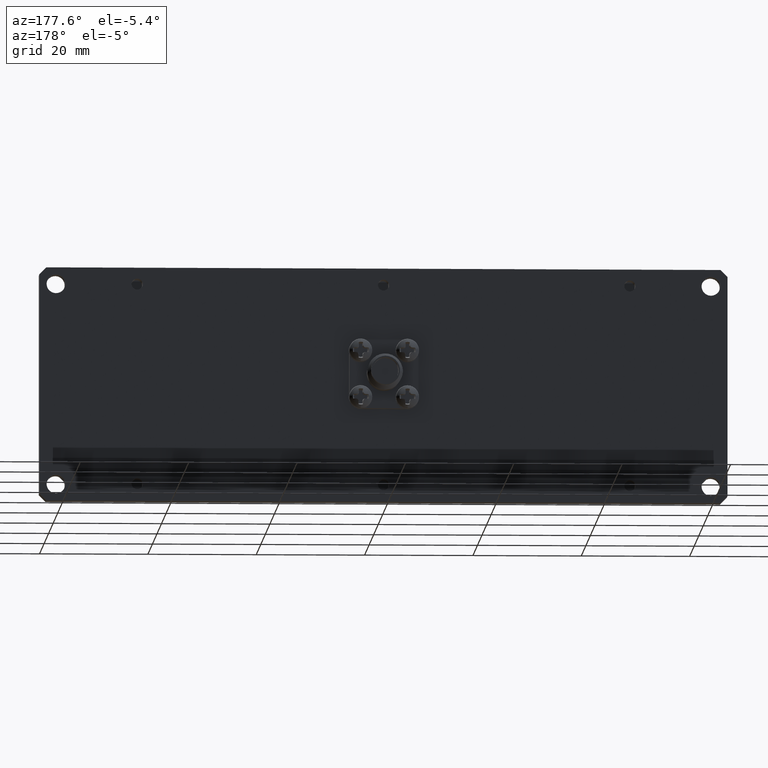
[diagram: clean part render]
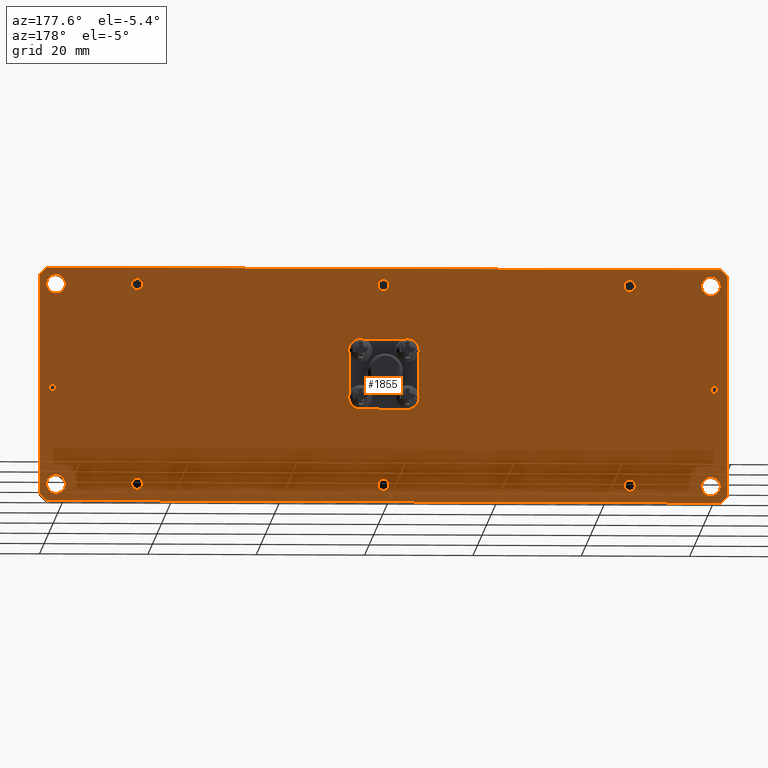
[diagram: same view with one face highlighted and labeled with its STEP entity id]
A machine part, auxiliary view. The second image highlights one B-rep face of the part: STEP entity #1855.
In plain terms, the highlighted planar face has unit normal (0, 1, 0).
Its self-contained STEP definition (entity closure, byte-faithful):
#170 = ORIENTED_EDGE ( 'NONE', *, *, #29486, .F. ) ;
#264 = EDGE_CURVE ( 'NONE', #14353, #33025, #21307, .T. ) ;
#444 = EDGE_LOOP ( 'NONE', ( #8546, #9588, #20936, #4145, #3672, #19358, #15142, #3455 ) ) ;
#504 = CARTESIAN_POINT ( 'NONE',  ( -1.649999999999999900, 0.1250000000000000000, 1.649999999999999900 ) ) ;
#555 = CARTESIAN_POINT ( 'NONE',  ( -2.380000000000000300, 0.1250000000000000000, 0.6619999999999994800 ) ) ;
#564 = DIRECTION ( 'NONE',  ( 0.0000000000000000000, -0.0000000000000000000, 1.000000000000000000 ) ) ;
#573 = CARTESIAN_POINT ( 'NONE',  ( 2.380000000000000800, 0.1250000000000000000, 0.7299999999999995400 ) ) ;
#587 = EDGE_CURVE ( 'NONE', #1385, #23459, #22820, .T. ) ;
#641 = VERTEX_POINT ( 'NONE', #23911 ) ;
#778 = AXIS2_PLACEMENT_3D ( 'NONE', #17307, #4745, #24891 ) ;
#812 = EDGE_CURVE ( 'NONE', #25346, #32474, #12779, .T. ) ;
#861 = CARTESIAN_POINT ( 'NONE',  ( 1.789999999999999800, 0.1250000000000000600, 0.7703543307086611100 ) ) ;
#916 = VERTEX_POINT ( 'NONE', #22867 ) ;
#959 = DIRECTION ( 'NONE',  ( 0.0000000000000000000, 0.0000000000000000000, 1.000000000000000000 ) ) ;
#1064 = DIRECTION ( 'NONE',  ( -0.0000000000000000000, 1.000000000000000000, -0.0000000000000000000 ) ) ;
#1065 = DIRECTION ( 'NONE',  ( 0.0000000000000000000, 1.000000000000000000, 0.0000000000000000000 ) ) ;
#1241 = DIRECTION ( 'NONE',  ( 0.7071067811865455700, -0.0000000000000000000, -0.7071067811865494600 ) ) ;
#1284 = DIRECTION ( 'NONE',  ( 0.0000000000000000000, 0.0000000000000000000, 1.000000000000000000 ) ) ;
#1319 = CARTESIAN_POINT ( 'NONE',  ( 2.450000000000001100, 0.1250000000000000000, 0.8499999999999995300 ) ) ;
#1385 = VERTEX_POINT ( 'NONE', #32944 ) ;
#1540 = DIRECTION ( 'NONE',  ( 0.0000000000000000000, 0.0000000000000000000, 1.000000000000000000 ) ) ;
#1613 = DIRECTION ( 'NONE',  ( -0.7071067811865474600, -0.0000000000000000000, 0.7071067811865474600 ) ) ;
#1618 = DIRECTION ( 'NONE',  ( 0.0000000000000000000, 1.000000000000000000, 0.0000000000000000000 ) ) ;
#1763 = ORIENTED_EDGE ( 'NONE', *, *, #23450, .F. ) ;
#1847 = DIRECTION ( 'NONE',  ( 0.0000000000000000000, 0.0000000000000000000, 1.000000000000000000 ) ) ;
#1855 = ADVANCED_FACE ( 'NONE', ( #25013, #9827, #21420, #19019, #7846, #2603, #17040, #13815, #24644, #15416, #18221, #30684, #8637 ), #14994, .T. ) ;
#1941 = CIRCLE ( 'NONE', #3715, 0.04035433070866093600 ) ;
#2153 = CIRCLE ( 'NONE', #4446, 0.02499999999999981400 ) ;
#2354 = ORIENTED_EDGE ( 'NONE', *, *, #22915, .F. ) ;
#2481 = EDGE_CURVE ( 'NONE', #916, #29447, #4074, .T. ) ;
#2555 = AXIS2_PLACEMENT_3D ( 'NONE', #11562, #24423, #16803 ) ;
#2603 = FACE_BOUND ( 'NONE', #22488, .T. ) ;
#2660 = CARTESIAN_POINT ( 'NONE',  ( -2.450000000000000200, 0.1250000000000000000, 0.8500000000000000900 ) ) ;
#2874 = DIRECTION ( 'NONE',  ( -0.0000000000000000000, -0.0000000000000000000, 1.000000000000000000 ) ) ;
#3363 = CARTESIAN_POINT ( 'NONE',  ( -2.405000000000000200, 0.1250000000000000000, -6.018602611041579900E-016 ) ) ;
#3455 = ORIENTED_EDGE ( 'NONE', *, *, #5411, .T. ) ;
#3519 = CIRCLE ( 'NONE', #12089, 0.06800000000000006000 ) ;
#3672 = ORIENTED_EDGE ( 'NONE', *, *, #812, .T. ) ;
#3715 = AXIS2_PLACEMENT_3D ( 'NONE', #5989, #22386, #9108 ) ;
#3731 = EDGE_LOOP ( 'NONE', ( #22822, #15215 ) ) ;
#3863 = LINE ( 'NONE', #13983, #30324 ) ;
#3930 = AXIS2_PLACEMENT_3D ( 'NONE', #21718, #11465, #26549 ) ;
#3964 = DIRECTION ( 'NONE',  ( 0.0000000000000000000, 0.0000000000000000000, 1.000000000000000000 ) ) ;
#4018 = EDGE_CURVE ( 'NONE', #32520, #13298, #17468, .T. ) ;
#4074 = CIRCLE ( 'NONE', #2555, 0.02499999999999981400 ) ;
#4145 = ORIENTED_EDGE ( 'NONE', *, *, #14202, .T. ) ;
#4251 = DIRECTION ( 'NONE',  ( 0.0000000000000000000, 1.000000000000000000, 0.0000000000000000000 ) ) ;
#4446 = AXIS2_PLACEMENT_3D ( 'NONE', #6110, #1065, #21525 ) ;
#4472 = EDGE_CURVE ( 'NONE', #22139, #14151, #32641, .T. ) ;
#4605 = VECTOR ( 'NONE', #7930, 39.37007874015748100 ) ;
#4725 = ORIENTED_EDGE ( 'NONE', *, *, #25792, .F. ) ;
#4735 = VERTEX_POINT ( 'NONE', #13486 ) ;
#4745 = DIRECTION ( 'NONE',  ( -0.0000000000000000000, 1.000000000000000000, -0.0000000000000000000 ) ) ;
#4906 = AXIS2_PLACEMENT_3D ( 'NONE', #30231, #32753, #17446 ) ;
#4967 = CIRCLE ( 'NONE', #12500, 0.02499999999999981400 ) ;
#5139 = CARTESIAN_POINT ( 'NONE',  ( 2.500000000000000000, 0.1250000000000000000, 0.8000000000000003800 ) ) ;
#5169 = VECTOR ( 'NONE', #11844, 39.37007874015748100 ) ;
#5332 = ORIENTED_EDGE ( 'NONE', *, *, #4018, .F. ) ;
#5411 = EDGE_CURVE ( 'NONE', #14151, #16728, #18124, .T. ) ;
#5433 = AXIS2_PLACEMENT_3D ( 'NONE', #26445, #1064, #959 ) ;
#5514 = EDGE_CURVE ( 'NONE', #18099, #11723, #22457, .T. ) ;
#5598 = CARTESIAN_POINT ( 'NONE',  ( 0.0000000000000000000, 0.1250000000000000600, 0.7300000000000003200 ) ) ;
#5687 = CARTESIAN_POINT ( 'NONE',  ( -2.500000000000000000, 0.1250000000000000000, 0.8500000000000000900 ) ) ;
#5989 = CARTESIAN_POINT ( 'NONE',  ( 0.0000000000000000000, 0.1250000000000000600, 0.7300000000000003200 ) ) ;
#6106 = VERTEX_POINT ( 'NONE', #22708 ) ;
#6110 = CARTESIAN_POINT ( 'NONE',  ( -2.405000000000000200, 0.1250000000000000000, -0.02500000000000041800 ) ) ;
#6322 = EDGE_CURVE ( 'NONE', #32801, #8958, #12096, .T. ) ;
#6768 = CIRCLE ( 'NONE', #16012, 0.04035433070866079700 ) ;
#6859 = CARTESIAN_POINT ( 'NONE',  ( -1.790000000000000300, 0.1250000000000000600, 0.6896456692913393000 ) ) ;
#7077 = CARTESIAN_POINT ( 'NONE',  ( 2.380000000000000800, 0.1250000000000000000, -0.7980000000000004900 ) ) ;
#7143 = EDGE_LOOP ( 'NONE', ( #11446, #8162 ) ) ;
#7259 = EDGE_CURVE ( 'NONE', #11723, #18099, #27214, .T. ) ;
#7325 = ORIENTED_EDGE ( 'NONE', *, *, #7259, .F. ) ;
#7335 = CARTESIAN_POINT ( 'NONE',  ( -2.380000000000000300, 0.1250000000000000000, -0.7300000000000004300 ) ) ;
#7354 = ORIENTED_EDGE ( 'NONE', *, *, #264, .F. ) ;
#7538 = DIRECTION ( 'NONE',  ( 0.0000000000000000000, 1.000000000000000000, 0.0000000000000000000 ) ) ;
#7583 = AXIS2_PLACEMENT_3D ( 'NONE', #5598, #13199, #8077 ) ;
#7617 = VERTEX_POINT ( 'NONE', #26467 ) ;
#7619 = AXIS2_PLACEMENT_3D ( 'NONE', #28498, #18292, #20836 ) ;
#7764 = VERTEX_POINT ( 'NONE', #861 ) ;
#7846 = FACE_BOUND ( 'NONE', #25328, .T. ) ;
#7904 = DIRECTION ( 'NONE',  ( 0.0000000000000000000, 0.0000000000000000000, 1.000000000000000000 ) ) ;
#7916 = CARTESIAN_POINT ( 'NONE',  ( 0.0000000000000000000, 0.1250000000000000600, 0.7703543307086612200 ) ) ;
#7930 = DIRECTION ( 'NONE',  ( 0.0000000000000000000, 0.0000000000000000000, -1.000000000000000000 ) ) ;
#8022 = DIRECTION ( 'NONE',  ( -1.000000000000000000, 0.0000000000000000000, 1.092739197465705300E-016 ) ) ;
#8077 = DIRECTION ( 'NONE',  ( 0.0000000000000000000, 0.0000000000000000000, 1.000000000000000000 ) ) ;
#8162 = ORIENTED_EDGE ( 'NONE', *, *, #19908, .F. ) ;
#8242 = CARTESIAN_POINT ( 'NONE',  ( -2.380000000000000300, 0.1250000000000000000, 0.7979999999999997100 ) ) ;
#8546 = ORIENTED_EDGE ( 'NONE', *, *, #19671, .T. ) ;
#8566 = ORIENTED_EDGE ( 'NONE', *, *, #32988, .F. ) ;
#8587 = CIRCLE ( 'NONE', #30400, 0.06800000000000006000 ) ;
#8637 = FACE_BOUND ( 'NONE', #17444, .T. ) ;
#8866 = CIRCLE ( 'NONE', #31024, 0.06800000000000006000 ) ;
#8958 = VERTEX_POINT ( 'NONE', #7077 ) ;
#9108 = DIRECTION ( 'NONE',  ( 0.0000000000000000000, 0.0000000000000000000, 1.000000000000000000 ) ) ;
#9131 = CARTESIAN_POINT ( 'NONE',  ( -1.790000000000000300, 0.1250000000000000600, 0.7300000000000000900 ) ) ;
#9184 = EDGE_CURVE ( 'NONE', #25024, #29705, #10803, .T. ) ;
#9336 = VERTEX_POINT ( 'NONE', #10342 ) ;
#9588 = ORIENTED_EDGE ( 'NONE', *, *, #19958, .T. ) ;
#9605 = CARTESIAN_POINT ( 'NONE',  ( 2.380000000000000800, 0.1250000000000000000, 0.7979999999999997100 ) ) ;
#9827 = FACE_BOUND ( 'NONE', #30229, .T. ) ;
#10035 = EDGE_LOOP ( 'NONE', ( #20780, #16948 ) ) ;
#10044 = EDGE_CURVE ( 'NONE', #7764, #641, #11891, .T. ) ;
#10151 = VERTEX_POINT ( 'NONE', #3363 ) ;
#10306 = AXIS2_PLACEMENT_3D ( 'NONE', #15699, #15820, #13464 ) ;
#10320 = DIRECTION ( 'NONE',  ( 0.0000000000000000000, 0.0000000000000000000, 1.000000000000000000 ) ) ;
#10342 = CARTESIAN_POINT ( 'NONE',  ( 0.0000000000000000000, 0.1250000000000000600, -0.6856456692913390800 ) ) ;
#10546 = AXIS2_PLACEMENT_3D ( 'NONE', #573, #16220, #18458 ) ;
#10713 = CARTESIAN_POINT ( 'NONE',  ( 2.500000000000000000, 0.1250000000000000000, -0.8000000000000006000 ) ) ;
#10714 = CARTESIAN_POINT ( 'NONE',  ( -2.500000000000000000, 0.1250000000000000000, 0.8000000000000003800 ) ) ;
#10803 = CIRCLE ( 'NONE', #778, 0.04035433070866079700 ) ;
#11211 = AXIS2_PLACEMENT_3D ( 'NONE', #22066, #1618, #1847 ) ;
#11446 = ORIENTED_EDGE ( 'NONE', *, *, #22501, .F. ) ;
#11465 = DIRECTION ( 'NONE',  ( -0.0000000000000000000, 1.000000000000000000, -0.0000000000000000000 ) ) ;
#11562 = CARTESIAN_POINT ( 'NONE',  ( 2.405000000000000200, 0.1250000000000000000, -0.02500000000000041800 ) ) ;
#11697 = DIRECTION ( 'NONE',  ( -0.7071067811865513500, 0.0000000000000000000, -0.7071067811865435800 ) ) ;
#11723 = VERTEX_POINT ( 'NONE', #21324 ) ;
#11744 = CARTESIAN_POINT ( 'NONE',  ( -2.450000000000000200, 0.1250000000000000000, -0.8499999999999998700 ) ) ;
#11844 = DIRECTION ( 'NONE',  ( 1.000000000000000000, -0.0000000000000000000, -1.092739197465705300E-016 ) ) ;
#11891 = CIRCLE ( 'NONE', #22671, 0.04035433070866079700 ) ;
#12089 = AXIS2_PLACEMENT_3D ( 'NONE', #29801, #4251, #19110 ) ;
#12096 = CIRCLE ( 'NONE', #11211, 0.06800000000000006000 ) ;
#12153 = EDGE_CURVE ( 'NONE', #21048, #6106, #16273, .T. ) ;
#12293 = EDGE_CURVE ( 'NONE', #32474, #22139, #3863, .T. ) ;
#12500 = AXIS2_PLACEMENT_3D ( 'NONE', #14528, #24814, #17328 ) ;
#12712 = CARTESIAN_POINT ( 'NONE',  ( 2.500000000000000000, 0.1250000000000000000, -0.8500000000000003100 ) ) ;
#12779 = LINE ( 'NONE', #32095, #5169 ) ;
#12837 = CARTESIAN_POINT ( 'NONE',  ( 2.500000000000000000, 0.1250000000000000000, 0.8499999999999995300 ) ) ;
#12925 = CIRCLE ( 'NONE', #5433, 0.04035433070866093600 ) ;
#13199 = DIRECTION ( 'NONE',  ( -0.0000000000000000000, 1.000000000000000000, -0.0000000000000000000 ) ) ;
#13242 = AXIS2_PLACEMENT_3D ( 'NONE', #21615, #24335, #1284 ) ;
#13298 = VERTEX_POINT ( 'NONE', #7916 ) ;
#13464 = DIRECTION ( 'NONE',  ( 0.0000000000000000000, 0.0000000000000000000, 1.000000000000000000 ) ) ;
#13486 = CARTESIAN_POINT ( 'NONE',  ( 4.941980193409546500E-018, 0.1250000000000000600, -0.7663543307086608800 ) ) ;
#13791 = DIRECTION ( 'NONE',  ( 0.0000000000000000000, 0.0000000000000000000, 1.000000000000000000 ) ) ;
#13815 = FACE_BOUND ( 'NONE', #3731, .T. ) ;
#13860 = EDGE_CURVE ( 'NONE', #641, #7764, #23270, .T. ) ;
#13983 = CARTESIAN_POINT ( 'NONE',  ( 1.650000000000007200, 0.1250000000000000000, 1.649999999999998100 ) ) ;
#14151 = VERTEX_POINT ( 'NONE', #10713 ) ;
#14172 = DIRECTION ( 'NONE',  ( -0.0000000000000000000, 1.000000000000000000, -0.0000000000000000000 ) ) ;
#14202 = EDGE_CURVE ( 'NONE', #23459, #25346, #22017, .T. ) ;
#14353 = VERTEX_POINT ( 'NONE', #21834 ) ;
#14528 = CARTESIAN_POINT ( 'NONE',  ( -2.405000000000000200, 0.1250000000000000000, -0.02500000000000041800 ) ) ;
#14552 = CIRCLE ( 'NONE', #27111, 0.06800000000000006000 ) ;
#14695 = AXIS2_PLACEMENT_3D ( 'NONE', #17957, #18288, #7904 ) ;
#14816 = CIRCLE ( 'NONE', #21924, 0.06800000000000006000 ) ;
#14919 = EDGE_CURVE ( 'NONE', #29705, #25024, #6768, .T. ) ;
#14994 = PLANE ( 'NONE',  #17561 ) ;
#15142 = ORIENTED_EDGE ( 'NONE', *, *, #4472, .T. ) ;
#15215 = ORIENTED_EDGE ( 'NONE', *, *, #12153, .F. ) ;
#15416 = FACE_OUTER_BOUND ( 'NONE', #444, .T. ) ;
#15699 = CARTESIAN_POINT ( 'NONE',  ( 2.405000000000000200, 0.1250000000000000000, -0.02500000000000041800 ) ) ;
#15820 = DIRECTION ( 'NONE',  ( 0.0000000000000000000, 1.000000000000000000, 0.0000000000000000000 ) ) ;
#15834 = DIRECTION ( 'NONE',  ( 0.0000000000000000000, 0.0000000000000000000, 1.000000000000000000 ) ) ;
#16012 = AXIS2_PLACEMENT_3D ( 'NONE', #9131, #31768, #19191 ) ;
#16018 = VECTOR ( 'NONE', #18393, 39.37007874015748900 ) ;
#16125 = ORIENTED_EDGE ( 'NONE', *, *, #17108, .F. ) ;
#16184 = VERTEX_POINT ( 'NONE', #23199 ) ;
#16220 = DIRECTION ( 'NONE',  ( 0.0000000000000000000, 1.000000000000000000, 0.0000000000000000000 ) ) ;
#16273 = CIRCLE ( 'NONE', #10546, 0.06800000000000006000 ) ;
#16418 = CARTESIAN_POINT ( 'NONE',  ( 2.449999999999999700, 0.1250000000000000000, -0.8500000000000003100 ) ) ;
#16728 = VERTEX_POINT ( 'NONE', #16418 ) ;
#16755 = AXIS2_PLACEMENT_3D ( 'NONE', #21292, #31409, #28954 ) ;
#16791 = CIRCLE ( 'NONE', #10306, 0.02499999999999981400 ) ;
#16803 = DIRECTION ( 'NONE',  ( 0.0000000000000000000, 0.0000000000000000000, 1.000000000000000000 ) ) ;
#16948 = ORIENTED_EDGE ( 'NONE', *, *, #13860, .F. ) ;
#17040 = FACE_BOUND ( 'NONE', #20011, .T. ) ;
#17068 = CARTESIAN_POINT ( 'NONE',  ( -1.649999999999999900, 0.1250000000000000000, -1.649999999999999900 ) ) ;
#17108 = EDGE_CURVE ( 'NONE', #9336, #4735, #18026, .T. ) ;
#17217 = ORIENTED_EDGE ( 'NONE', *, *, #5514, .F. ) ;
#17307 = CARTESIAN_POINT ( 'NONE',  ( -1.790000000000000300, 0.1250000000000000600, 0.7300000000000000900 ) ) ;
#17328 = DIRECTION ( 'NONE',  ( 0.0000000000000000000, 0.0000000000000000000, 1.000000000000000000 ) ) ;
#17444 = EDGE_LOOP ( 'NONE', ( #8566, #17874 ) ) ;
#17446 = DIRECTION ( 'NONE',  ( 0.0000000000000000000, 0.0000000000000000000, 1.000000000000000000 ) ) ;
#17468 = CIRCLE ( 'NONE', #7583, 0.04035433070866093600 ) ;
#17561 = AXIS2_PLACEMENT_3D ( 'NONE', #18447, #18344, #564 ) ;
#17725 = VERTEX_POINT ( 'NONE', #8242 ) ;
#17874 = ORIENTED_EDGE ( 'NONE', *, *, #6322, .F. ) ;
#17924 = EDGE_CURVE ( 'NONE', #13298, #32520, #1941, .T. ) ;
#17957 = CARTESIAN_POINT ( 'NONE',  ( -1.790000000000000300, 0.1250000000000000600, -0.7259999999999999800 ) ) ;
#18026 = CIRCLE ( 'NONE', #16755, 0.04035433070866093600 ) ;
#18099 = VERTEX_POINT ( 'NONE', #22958 ) ;
#18124 = LINE ( 'NONE', #19270, #23697 ) ;
#18221 = FACE_BOUND ( 'NONE', #28218, .T. ) ;
#18288 = DIRECTION ( 'NONE',  ( -0.0000000000000000000, 1.000000000000000000, -0.0000000000000000000 ) ) ;
#18292 = DIRECTION ( 'NONE',  ( -0.0000000000000000000, 1.000000000000000000, -0.0000000000000000000 ) ) ;
#18344 = DIRECTION ( 'NONE',  ( 0.0000000000000000000, 1.000000000000000000, 0.0000000000000000000 ) ) ;
#18393 = DIRECTION ( 'NONE',  ( 0.7071067811865474600, -0.0000000000000000000, 0.7071067811865474600 ) ) ;
#18447 = CARTESIAN_POINT ( 'NONE',  ( 0.0000000000000000000, 0.1250000000000000000, 0.0000000000000000000 ) ) ;
#18458 = DIRECTION ( 'NONE',  ( 0.0000000000000000000, 0.0000000000000000000, 1.000000000000000000 ) ) ;
#18821 = DIRECTION ( 'NONE',  ( 0.0000000000000000000, 1.000000000000000000, 0.0000000000000000000 ) ) ;
#19019 = FACE_BOUND ( 'NONE', #10035, .T. ) ;
#19110 = DIRECTION ( 'NONE',  ( 0.0000000000000000000, 0.0000000000000000000, 1.000000000000000000 ) ) ;
#19191 = DIRECTION ( 'NONE',  ( 0.0000000000000000000, 0.0000000000000000000, 1.000000000000000000 ) ) ;
#19270 = CARTESIAN_POINT ( 'NONE',  ( 1.649999999999986800, 0.1250000000000000000, -1.650000000000005000 ) ) ;
#19279 = CARTESIAN_POINT ( 'NONE',  ( 2.380000000000000800, 0.1250000000000000000, 0.7299999999999995400 ) ) ;
#19358 = ORIENTED_EDGE ( 'NONE', *, *, #12293, .T. ) ;
#19572 = EDGE_LOOP ( 'NONE', ( #25019, #28254 ) ) ;
#19671 = EDGE_CURVE ( 'NONE', #16728, #25603, #23371, .T. ) ;
#19697 = ORIENTED_EDGE ( 'NONE', *, *, #17924, .F. ) ;
#19908 = EDGE_CURVE ( 'NONE', #10151, #16184, #2153, .T. ) ;
#19958 = EDGE_CURVE ( 'NONE', #25603, #1385, #23808, .T. ) ;
#20011 = EDGE_LOOP ( 'NONE', ( #30549, #25432 ) ) ;
#20073 = CIRCLE ( 'NONE', #7619, 0.04035433070866079700 ) ;
#20780 = ORIENTED_EDGE ( 'NONE', *, *, #10044, .F. ) ;
#20836 = DIRECTION ( 'NONE',  ( 0.0000000000000000000, 0.0000000000000000000, 1.000000000000000000 ) ) ;
#20936 = ORIENTED_EDGE ( 'NONE', *, *, #587, .T. ) ;
#20969 = DIRECTION ( 'NONE',  ( 0.0000000000000000000, 1.000000000000000000, 0.0000000000000000000 ) ) ;
#21048 = VERTEX_POINT ( 'NONE', #9605 ) ;
#21075 = CARTESIAN_POINT ( 'NONE',  ( -2.380000000000000300, 0.1250000000000000000, -0.7980000000000004900 ) ) ;
#21077 = CARTESIAN_POINT ( 'NONE',  ( -1.790000000000000300, 0.1250000000000000600, 0.7703543307086608800 ) ) ;
#21292 = CARTESIAN_POINT ( 'NONE',  ( 0.0000000000000000000, 0.1250000000000000600, -0.7259999999999999800 ) ) ;
#21307 = CIRCLE ( 'NONE', #14695, 0.04035433070866079700 ) ;
#21324 = CARTESIAN_POINT ( 'NONE',  ( 1.789999999999999800, 0.1250000000000000600, -0.6856456692913391900 ) ) ;
#21420 = FACE_BOUND ( 'NONE', #21909, .T. ) ;
#21525 = DIRECTION ( 'NONE',  ( 0.0000000000000000000, 0.0000000000000000000, 1.000000000000000000 ) ) ;
#21579 = DIRECTION ( 'NONE',  ( -0.0000000000000000000, 1.000000000000000000, -0.0000000000000000000 ) ) ;
#21615 = CARTESIAN_POINT ( 'NONE',  ( -2.380000000000000300, 0.1250000000000000000, 0.7299999999999995400 ) ) ;
#21718 = CARTESIAN_POINT ( 'NONE',  ( 1.789999999999999800, 0.1250000000000000600, -0.7259999999999999800 ) ) ;
#21834 = CARTESIAN_POINT ( 'NONE',  ( -1.790000000000000300, 0.1250000000000000600, -0.6856456692913391900 ) ) ;
#21909 = EDGE_LOOP ( 'NONE', ( #7325, #17217 ) ) ;
#21924 = AXIS2_PLACEMENT_3D ( 'NONE', #23216, #20969, #15834 ) ;
#22017 = LINE ( 'NONE', #504, #16018 ) ;
#22066 = CARTESIAN_POINT ( 'NONE',  ( 2.380000000000000800, 0.1250000000000000000, -0.7300000000000004300 ) ) ;
#22139 = VERTEX_POINT ( 'NONE', #5139 ) ;
#22268 = VERTEX_POINT ( 'NONE', #555 ) ;
#22386 = DIRECTION ( 'NONE',  ( -0.0000000000000000000, 1.000000000000000000, -0.0000000000000000000 ) ) ;
#22457 = CIRCLE ( 'NONE', #4906, 0.04035433070866079700 ) ;
#22488 = EDGE_LOOP ( 'NONE', ( #29358, #33196 ) ) ;
#22501 = EDGE_CURVE ( 'NONE', #16184, #10151, #4967, .T. ) ;
#22518 = CARTESIAN_POINT ( 'NONE',  ( 4.941980193409546500E-018, 0.1250000000000000600, 0.6896456692913393000 ) ) ;
#22671 = AXIS2_PLACEMENT_3D ( 'NONE', #31923, #21579, #29237 ) ;
#22684 = CIRCLE ( 'NONE', #13242, 0.06800000000000006000 ) ;
#22708 = CARTESIAN_POINT ( 'NONE',  ( 2.380000000000000800, 0.1250000000000000000, 0.6619999999999994800 ) ) ;
#22820 = LINE ( 'NONE', #5687, #24855 ) ;
#22822 = ORIENTED_EDGE ( 'NONE', *, *, #23107, .F. ) ;
#22867 = CARTESIAN_POINT ( 'NONE',  ( 2.405000000000000200, 0.1250000000000000000, -6.018602611041579900E-016 ) ) ;
#22915 = EDGE_CURVE ( 'NONE', #4735, #9336, #12925, .T. ) ;
#22929 = VERTEX_POINT ( 'NONE', #21075 ) ;
#22958 = CARTESIAN_POINT ( 'NONE',  ( 1.789999999999999800, 0.1250000000000000600, -0.7663543307086607700 ) ) ;
#23107 = EDGE_CURVE ( 'NONE', #6106, #21048, #14552, .T. ) ;
#23199 = CARTESIAN_POINT ( 'NONE',  ( -2.405000000000000200, 0.1250000000000000000, -0.05000000000000023200 ) ) ;
#23216 = CARTESIAN_POINT ( 'NONE',  ( -2.380000000000000300, 0.1250000000000000000, -0.7300000000000004300 ) ) ;
#23270 = CIRCLE ( 'NONE', #26258, 0.04035433070866079700 ) ;
#23371 = LINE ( 'NONE', #12712, #30230 ) ;
#23450 = EDGE_CURVE ( 'NONE', #33025, #14353, #20073, .T. ) ;
#23459 = VERTEX_POINT ( 'NONE', #10714 ) ;
#23697 = VECTOR ( 'NONE', #11697, 39.37007874015748900 ) ;
#23808 = LINE ( 'NONE', #17068, #24981 ) ;
#23911 = CARTESIAN_POINT ( 'NONE',  ( 1.789999999999999800, 0.1250000000000000600, 0.6896456692913395200 ) ) ;
#24187 = EDGE_CURVE ( 'NONE', #7617, #22929, #14816, .T. ) ;
#24268 = CARTESIAN_POINT ( 'NONE',  ( 1.789999999999999800, 0.1250000000000000600, 0.7300000000000003200 ) ) ;
#24335 = DIRECTION ( 'NONE',  ( 0.0000000000000000000, 1.000000000000000000, 0.0000000000000000000 ) ) ;
#24423 = DIRECTION ( 'NONE',  ( 0.0000000000000000000, 1.000000000000000000, 0.0000000000000000000 ) ) ;
#24644 = FACE_BOUND ( 'NONE', #19572, .T. ) ;
#24814 = DIRECTION ( 'NONE',  ( 0.0000000000000000000, 1.000000000000000000, 0.0000000000000000000 ) ) ;
#24855 = VECTOR ( 'NONE', #2874, 39.37007874015748100 ) ;
#24891 = DIRECTION ( 'NONE',  ( 0.0000000000000000000, 0.0000000000000000000, 1.000000000000000000 ) ) ;
#24981 = VECTOR ( 'NONE', #1613, 39.37007874015748900 ) ;
#25013 = FACE_BOUND ( 'NONE', #31794, .T. ) ;
#25019 = ORIENTED_EDGE ( 'NONE', *, *, #28127, .F. ) ;
#25024 = VERTEX_POINT ( 'NONE', #6859 ) ;
#25328 = EDGE_LOOP ( 'NONE', ( #19697, #5332 ) ) ;
#25346 = VERTEX_POINT ( 'NONE', #2660 ) ;
#25432 = ORIENTED_EDGE ( 'NONE', *, *, #2481, .F. ) ;
#25603 = VERTEX_POINT ( 'NONE', #11744 ) ;
#25792 = EDGE_CURVE ( 'NONE', #22268, #17725, #3519, .T. ) ;
#26258 = AXIS2_PLACEMENT_3D ( 'NONE', #24268, #14172, #1540 ) ;
#26445 = CARTESIAN_POINT ( 'NONE',  ( 0.0000000000000000000, 0.1250000000000000600, -0.7259999999999999800 ) ) ;
#26467 = CARTESIAN_POINT ( 'NONE',  ( -2.380000000000000300, 0.1250000000000000000, -0.6620000000000003700 ) ) ;
#26549 = DIRECTION ( 'NONE',  ( 0.0000000000000000000, 0.0000000000000000000, 1.000000000000000000 ) ) ;
#27111 = AXIS2_PLACEMENT_3D ( 'NONE', #19279, #29395, #3964 ) ;
#27214 = CIRCLE ( 'NONE', #3930, 0.04035433070866079700 ) ;
#28127 = EDGE_CURVE ( 'NONE', #22929, #7617, #8866, .T. ) ;
#28218 = EDGE_LOOP ( 'NONE', ( #4725, #170 ) ) ;
#28254 = ORIENTED_EDGE ( 'NONE', *, *, #24187, .F. ) ;
#28498 = CARTESIAN_POINT ( 'NONE',  ( -1.790000000000000300, 0.1250000000000000600, -0.7259999999999999800 ) ) ;
#28954 = DIRECTION ( 'NONE',  ( 0.0000000000000000000, 0.0000000000000000000, 1.000000000000000000 ) ) ;
#29158 = CARTESIAN_POINT ( 'NONE',  ( -1.790000000000000300, 0.1250000000000000600, -0.7663543307086607700 ) ) ;
#29237 = DIRECTION ( 'NONE',  ( 0.0000000000000000000, 0.0000000000000000000, 1.000000000000000000 ) ) ;
#29263 = CARTESIAN_POINT ( 'NONE',  ( 2.380000000000000800, 0.1250000000000000000, -0.7300000000000004300 ) ) ;
#29358 = ORIENTED_EDGE ( 'NONE', *, *, #14919, .F. ) ;
#29395 = DIRECTION ( 'NONE',  ( 0.0000000000000000000, 1.000000000000000000, 0.0000000000000000000 ) ) ;
#29447 = VERTEX_POINT ( 'NONE', #31737 ) ;
#29486 = EDGE_CURVE ( 'NONE', #17725, #22268, #22684, .T. ) ;
#29705 = VERTEX_POINT ( 'NONE', #21077 ) ;
#29801 = CARTESIAN_POINT ( 'NONE',  ( -2.380000000000000300, 0.1250000000000000000, 0.7299999999999995400 ) ) ;
#30229 = EDGE_LOOP ( 'NONE', ( #16125, #2354 ) ) ;
#30230 = VECTOR ( 'NONE', #8022, 39.37007874015748100 ) ;
#30231 = CARTESIAN_POINT ( 'NONE',  ( 1.789999999999999800, 0.1250000000000000600, -0.7259999999999999800 ) ) ;
#30324 = VECTOR ( 'NONE', #1241, 39.37007874015748900 ) ;
#30400 = AXIS2_PLACEMENT_3D ( 'NONE', #29263, #18821, #13791 ) ;
#30549 = ORIENTED_EDGE ( 'NONE', *, *, #31236, .F. ) ;
#30684 = FACE_BOUND ( 'NONE', #7143, .T. ) ;
#31024 = AXIS2_PLACEMENT_3D ( 'NONE', #7335, #7538, #10320 ) ;
#31171 = CARTESIAN_POINT ( 'NONE',  ( 2.380000000000000800, 0.1250000000000000000, -0.6620000000000003700 ) ) ;
#31236 = EDGE_CURVE ( 'NONE', #29447, #916, #16791, .T. ) ;
#31409 = DIRECTION ( 'NONE',  ( -0.0000000000000000000, 1.000000000000000000, -0.0000000000000000000 ) ) ;
#31737 = CARTESIAN_POINT ( 'NONE',  ( 2.405000000000000200, 0.1250000000000000000, -0.05000000000000023200 ) ) ;
#31768 = DIRECTION ( 'NONE',  ( -0.0000000000000000000, 1.000000000000000000, -0.0000000000000000000 ) ) ;
#31794 = EDGE_LOOP ( 'NONE', ( #7354, #1763 ) ) ;
#31923 = CARTESIAN_POINT ( 'NONE',  ( 1.789999999999999800, 0.1250000000000000600, 0.7300000000000003200 ) ) ;
#32095 = CARTESIAN_POINT ( 'NONE',  ( 2.500000000000000000, 0.1250000000000000000, 0.8499999999999995300 ) ) ;
#32474 = VERTEX_POINT ( 'NONE', #1319 ) ;
#32520 = VERTEX_POINT ( 'NONE', #22518 ) ;
#32641 = LINE ( 'NONE', #12837, #4605 ) ;
#32753 = DIRECTION ( 'NONE',  ( -0.0000000000000000000, 1.000000000000000000, -0.0000000000000000000 ) ) ;
#32801 = VERTEX_POINT ( 'NONE', #31171 ) ;
#32944 = CARTESIAN_POINT ( 'NONE',  ( -2.500000000000000000, 0.1250000000000000000, -0.8000000000000000400 ) ) ;
#32988 = EDGE_CURVE ( 'NONE', #8958, #32801, #8587, .T. ) ;
#33025 = VERTEX_POINT ( 'NONE', #29158 ) ;
#33196 = ORIENTED_EDGE ( 'NONE', *, *, #9184, .F. ) ;